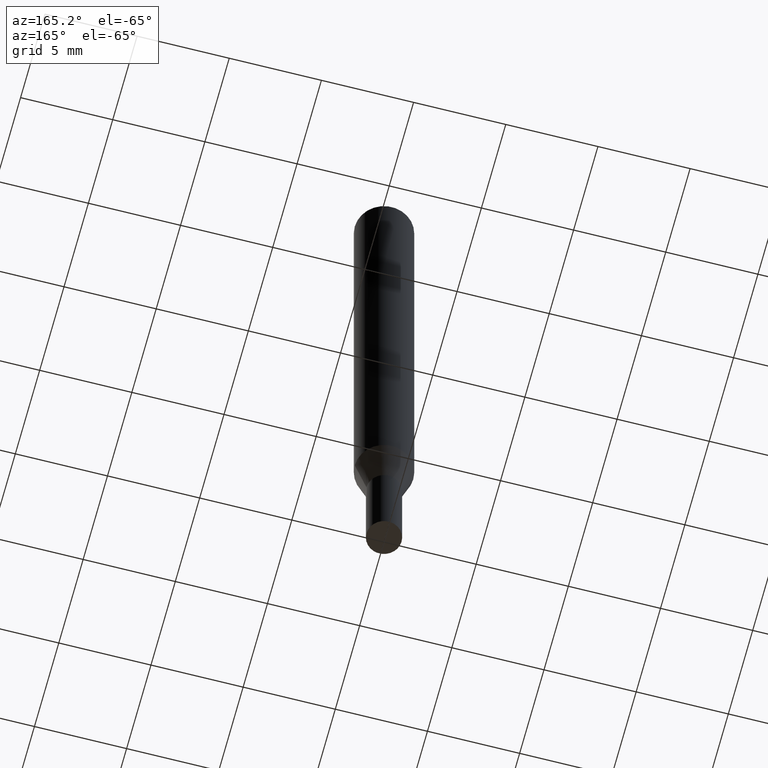
[diagram: clean part render]
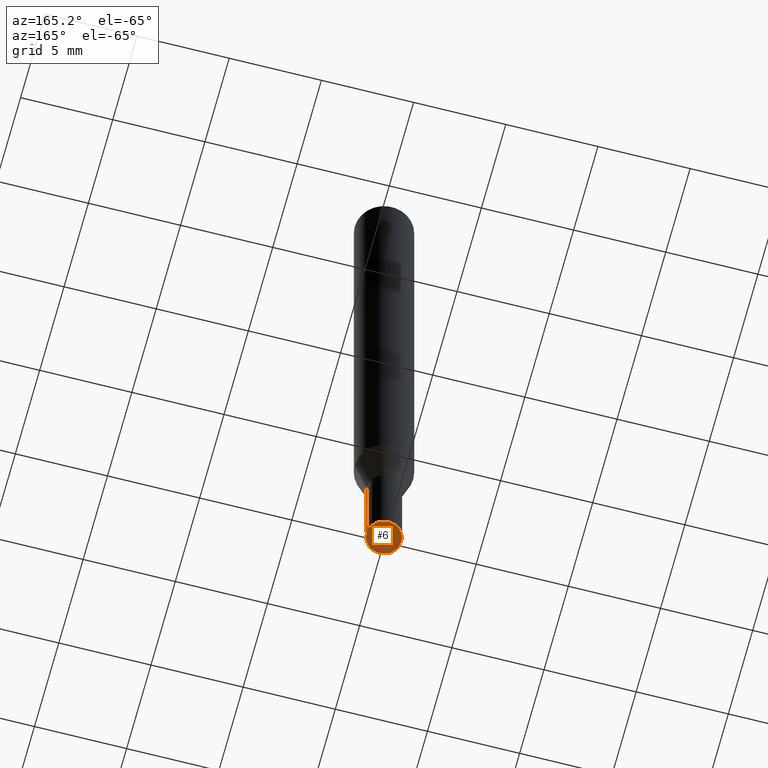
[diagram: same view with one face highlighted and labeled with its STEP entity id]
A machine part, auxiliary view. The second image highlights one B-rep face of the part: STEP entity #6.
In plain terms, the highlighted planar face has unit normal (-0, 0, 1).
Its self-contained STEP definition (entity closure, byte-faithful):
#6 = ADVANCED_FACE ( 'NONE', ( #46 ), #216, .F. ) ;
#7 = CARTESIAN_POINT ( 'NONE',  ( 3.668203209277704895E-29, -5.237222008264718177E-15, -1.500000000000000222 ) ) ;
#24 = DIRECTION ( 'NONE',  ( 1.000000000000000000, -6.982962677686268288E-15, 0.000000000000000000 ) ) ;
#46 = FACE_OUTER_BOUND ( 'NONE', #297, .T. ) ;
#62 = ORIENTED_EDGE ( 'NONE', *, *, #83, .F. ) ;
#69 = CIRCLE ( 'NONE', #417, 0.03749999999999999861 ) ;
#83 = EDGE_CURVE ( 'NONE', #355, #313, #258, .T. ) ;
#126 = EDGE_CURVE ( 'NONE', #313, #355, #69, .T. ) ;
#136 = DIRECTION ( 'NONE',  ( -2.445468806185136597E-29, 3.491481338843145583E-15, 1.000000000000000000 ) ) ;
#141 = AXIS2_PLACEMENT_3D ( 'NONE', #263, #257, #184 ) ;
#150 = DIRECTION ( 'NONE',  ( -2.445468806185136597E-29, 3.491481338843145583E-15, 1.000000000000000000 ) ) ;
#184 = DIRECTION ( 'NONE',  ( 1.000000000000000000, -6.982962677686265922E-15, 4.876176775795935793E-29 ) ) ;
#216 = PLANE ( 'NONE',  #141 ) ;
#227 = ORIENTED_EDGE ( 'NONE', *, *, #126, .F. ) ;
#257 = DIRECTION ( 'NONE',  ( -2.438088387897960049E-29, 3.491481338843145188E-15, 1.000000000000000000 ) ) ;
#258 = CIRCLE ( 'NONE', #390, 0.03749999999999999861 ) ;
#263 = CARTESIAN_POINT ( 'NONE',  ( 3.576687321579069994E-29, -5.368277968210015545E-15, -1.500000000000000222 ) ) ;
#271 = CARTESIAN_POINT ( 'NONE',  ( 3.668203209277704895E-29, -5.237222008264718177E-15, -1.500000000000000222 ) ) ;
#296 = DIRECTION ( 'NONE',  ( 1.000000000000000000, -6.982962677686268288E-15, 0.000000000000000000 ) ) ;
#297 = EDGE_LOOP ( 'NONE', ( #227, #62 ) ) ;
#313 = VERTEX_POINT ( 'NONE', #448 ) ;
#314 = CARTESIAN_POINT ( 'NONE',  ( -0.03749999999999999861, -4.577976831734827473E-15, -1.500000000000000222 ) ) ;
#355 = VERTEX_POINT ( 'NONE', #314 ) ;
#390 = AXIS2_PLACEMENT_3D ( 'NONE', #7, #150, #296 ) ;
#417 = AXIS2_PLACEMENT_3D ( 'NONE', #271, #136, #24 ) ;
#448 = CARTESIAN_POINT ( 'NONE',  ( 0.03749999999999999861, -5.499083108677953967E-15, -1.500000000000000222 ) ) ;